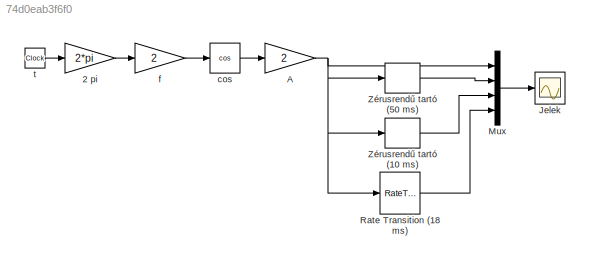
MODEL slx_74d0eab3f6f0
KIND model
BLOCK [Gain] 2 pi
  Gain = 2*pi
  OutDataTypeStr = Inherit: Inherit via internal rule
  ParamDataTypeStr = Inherit: Inherit via internal rule
  SaturateOnIntegerOverflow = off
BLOCK [Gain] A
  Gain = 2
  OutDataTypeStr = Inherit: Inherit via internal rule
  ParamDataTypeStr = Inherit: Inherit via internal rule
  SaturateOnIntegerOverflow = off
BLOCK [Scope] Jelek
  DataFormat = StructureWithTime
  Floating = off
  LimitDataPoints = off
  NumInputPorts = 1
  Ports = [1]
  SampleTime = 0
  ShowLegends = off
BLOCK [Mux] Mux
  DisplayOption = bar
  Ports = [4, 1]
BLOCK [RateTransition] Rate Transition (18 ms)
  OutPortSampleTime = 18e-3
BLOCK [ZeroOrderHold] Zérusrendű tartó (10 ms)
  SampleTime = 10e-3
BLOCK [ZeroOrderHold] Zérusrendű tartó (50 ms)
  SampleTime = 50e-3
BLOCK [Trigonometry] cos
  Operator = cos
  Ports = [1, 1]
BLOCK [Gain] f
  Gain = 2
  OutDataTypeStr = Inherit: Inherit via internal rule
  ParamDataTypeStr = Inherit: Inherit via internal rule
  SaturateOnIntegerOverflow = off
BLOCK [Clock] t
LINE 2 pi:1 -> f:1
NET A:1 -> Mux:1, Rate Transition (18 ms):1, Zérusrendű tartó (10 ms):1, Zérusrendű tartó (50 ms):1
LINE Mux:1 -> Jelek:1
LINE Rate Transition (18 ms):1 -> Mux:4
LINE Zérusrendű tartó (10 ms):1 -> Mux:3
LINE Zérusrendű tartó (50 ms):1 -> Mux:2
LINE cos:1 -> A:1
LINE f:1 -> cos:1
LINE t:1 -> 2 pi:1
note: NET lines group one-source signal fan-out (src -> all destinations, sorted); 1:1 wires keep LINE
